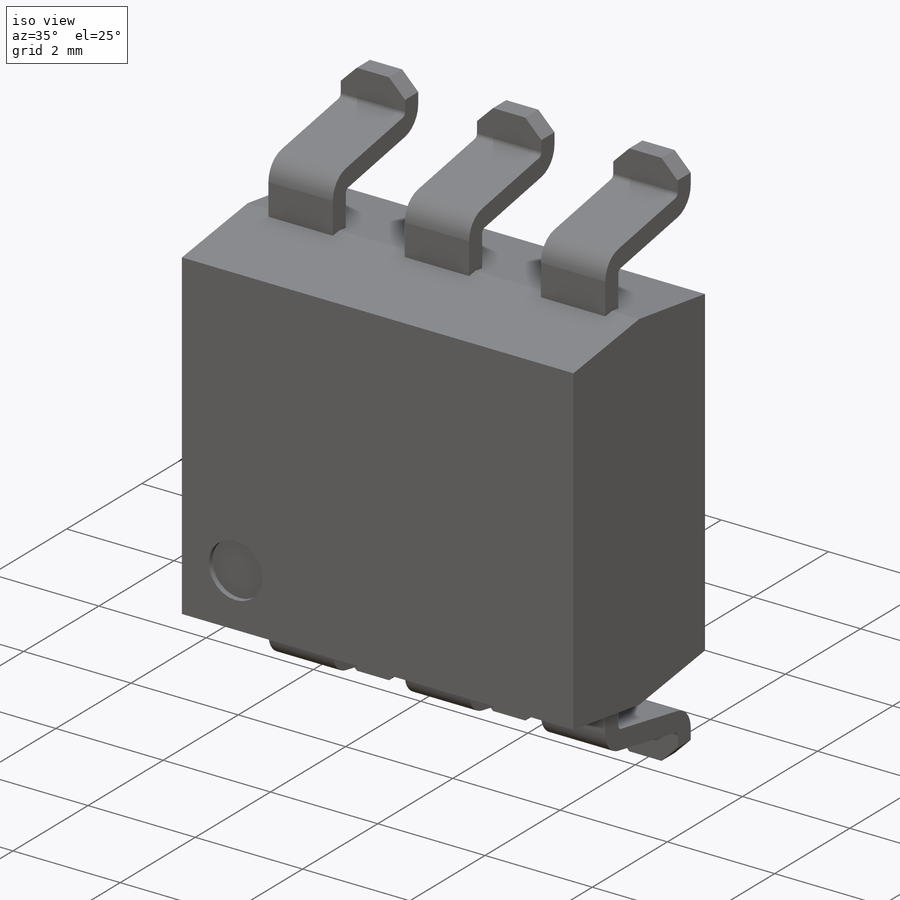
[diagram: iso view]
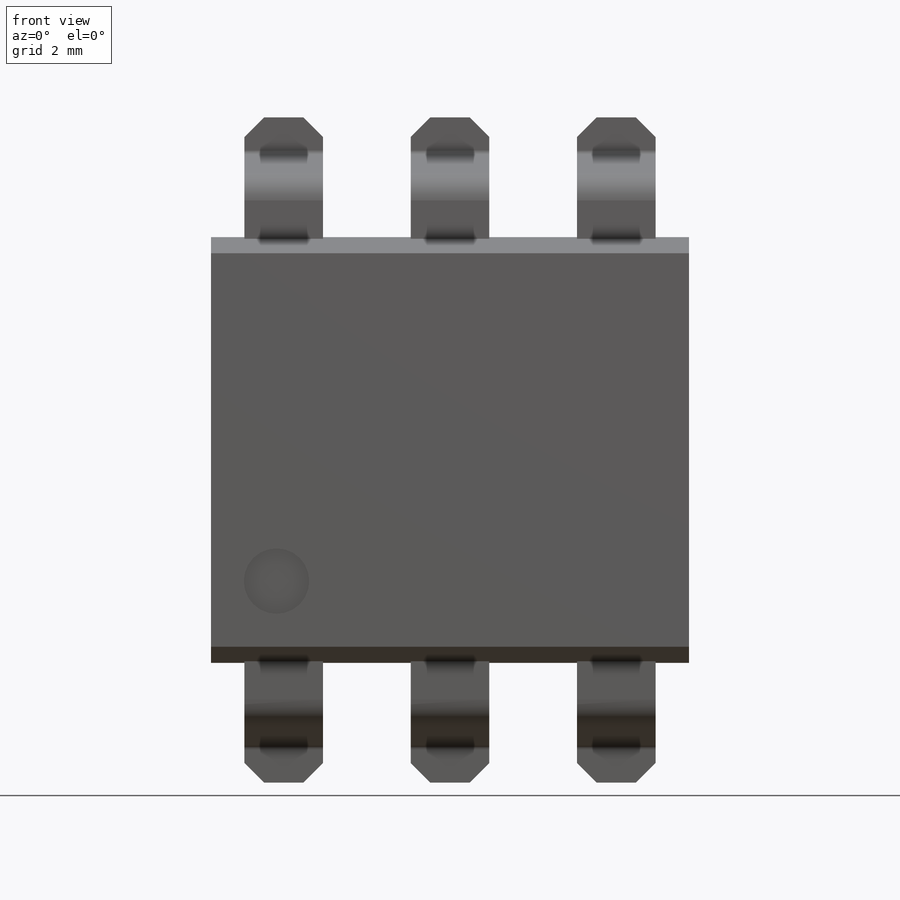
[diagram: front view]
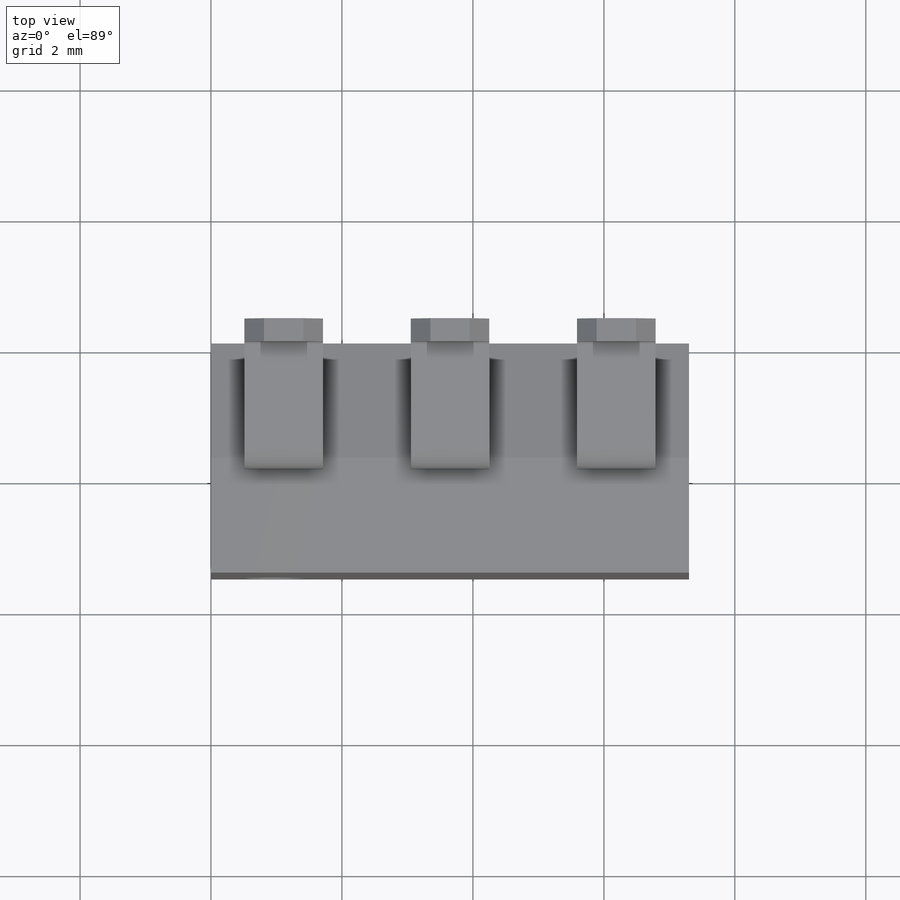
[diagram: top view]
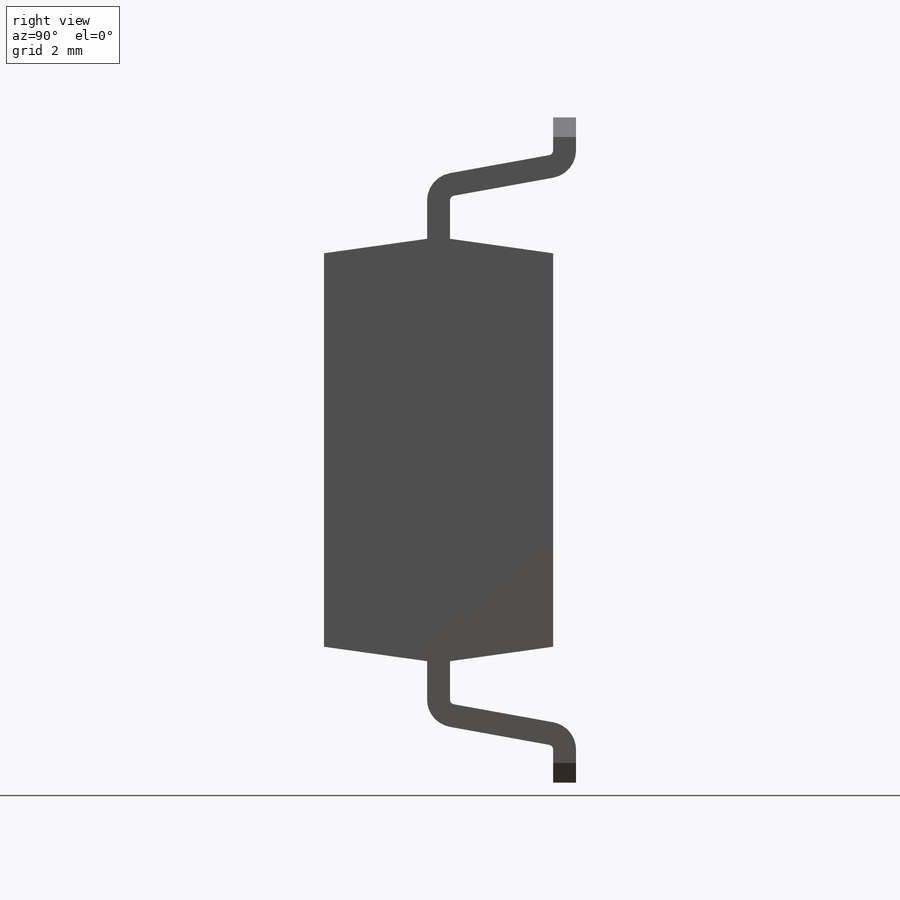
[diagram: right view]
SOLIDWORKS PART (.sldprt)
format: sldprt  version: not decoded by parser v0  size: 282,112 bytes
history: native  units: mm
features: plane x4, sketch x4, extrude x3, chamfer x3, material x1, pattern_linear x1, mirror x1, cut_extrude x1 (+13 scaffold rows collapsed)
feature tree (31):
  scaffold x13  (default folders/planes/origin — collapsed)
  material  "Material <not specified>"
  plane  "Plane1"  Offset=1.75mm
  sketch  "Sketch1"  dims[D1=7.3mm D2=6.5mm]
  extrude  "Boss-Extrude1"  Depth=1.75mm
  sketch  "Sketch2"
  extrude  "Boss-Extrude2"  Depth=1.75mm
  extrude  "Draft2"  [1 undecoded]
  plane  "Plane2"  Offset=3.65mm
  plane  "Plane3"  Offset=2.54mm
  plane  "Plane4"  Offset=3.25mm
  sketch  "Sketch3"  dims[c1.D1=0.25mm c1.D2=3.81mm c1.D3=5.08mm c1.D4=0.175mm c2.D1=1.2mm c2.D5=0.35mm c2.D6=1.0mm c2.D7=5.0mm]
  pattern_linear  "LPattern1"  Count1=3 Count2=1 Spacing1=2.54mm Spacing2=10mm
  chamfer  "Chamfer1"  Distance=0.3mm Angle=45deg
  chamfer  "Chamfer2"  Distance=0.3mm Angle=45deg
  chamfer  "Chamfer3"  Distance=0.3mm Angle=45deg
  mirror  "Mirror1"
  sketch  "Sketch4"  dims[D3=1.0mm D1=1.0mm D2=1.0mm]
  cut_extrude  "Cut-Extrude1"  Depth=0.1mm
decode coverage: 10 of 13 modeling features carry decoded parameters
note: 1 parameter value undecoded
note: suppression state not decoded; provenance and decode notes live in map.json
